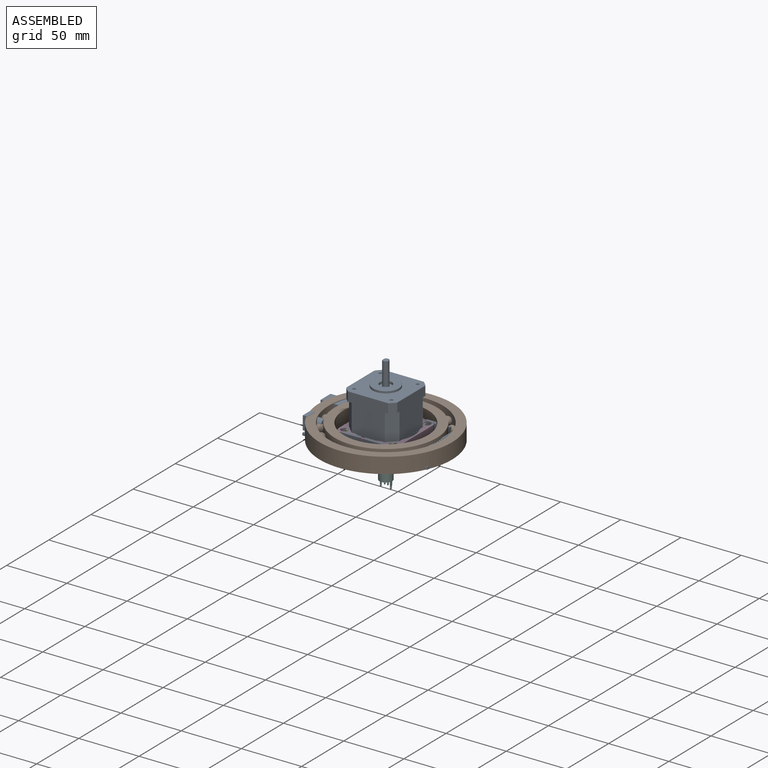
[diagram: assembled view]
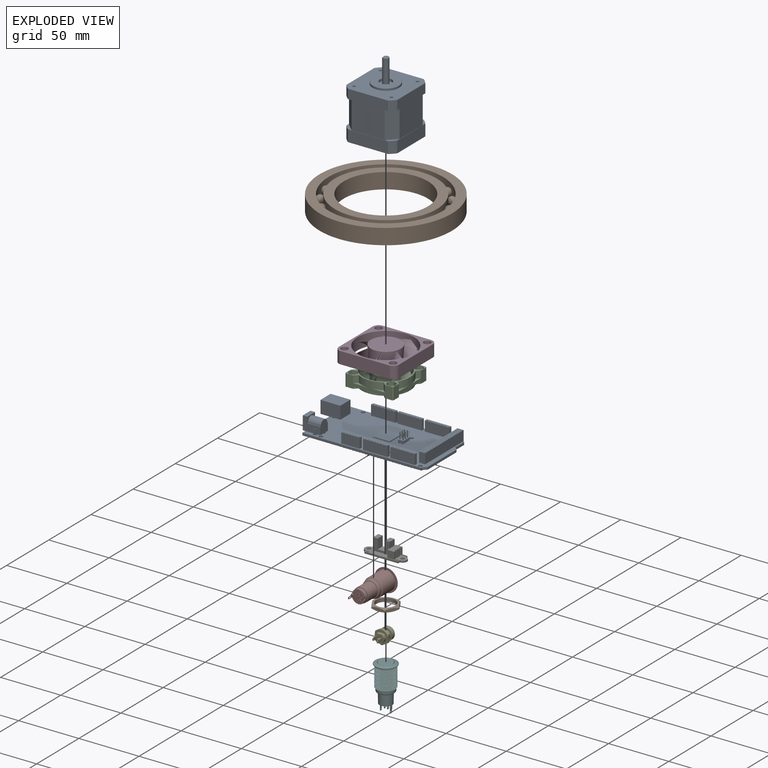
[diagram: exploded view]
GUIDED TOUR — FREECAD ASSEMBLY "AssemblyBase"

This assembly has 10 components, labeled P0..P9 below (a component is one placed body or linked part; the same part can appear more than once), held together by 0 modeled joints plus 37 derived contact edges. A joint is a constraint between two components; its type names the relative motion it leaves free:
  CONTACT — a derived adjacency edge — the two components touch in the source model (clearance under 2% of the assembly's diagonal); it is measured from the geometry, not a modeled constraint.
Axis/direction vectors are unit vectors and 'through' points are millimeter coordinates, both in the assembly's world frame.

MATES
  1. CONTACT "contact_0_1": P0 <-> P1, contact direction (0.000, 0.000, 1.000) through (43.53, 14.49, 9.83) mm (derived from contact, not a modeled constraint)
  2. CONTACT "contact_0_2": P0 <-> P2, contact direction (0.000, 0.000, 1.000) through (16.25, 9.92, 0.00) mm (derived from contact, not a modeled constraint)
  3. CONTACT "contact_0_3": P0 <-> P3, contact direction (0.000, 0.000, 1.000) through (15.52, -17.59, 0.00) mm (derived from contact, not a modeled constraint)
  4. CONTACT "contact_0_4": P0 <-> P4, contact direction (0.000, 0.000, -1.000) through (5.92, -5.20, 2.07) mm (derived from contact, not a modeled constraint)
  5. CONTACT "contact_0_5": P0 <-> P5, contact direction (0.000, 0.000, -1.000) through (6.12, -5.07, 1.58) mm (derived from contact, not a modeled constraint)
  6. CONTACT "contact_0_6": P0 <-> P6, contact direction (0.000, 0.000, -1.000) through (13.16, 3.93, 0.00) mm (derived from contact, not a modeled constraint)
  7. CONTACT "contact_0_7": P0 <-> P7, contact direction (0.000, 0.000, -1.000) through (-5.20, -25.64, 2.02) mm (derived from contact, not a modeled constraint)
  8. CONTACT "contact_0_8": P0 <-> P8, contact direction (0.000, 0.000, 1.000) through (15.49, -17.28, 0.00) mm (derived from contact, not a modeled constraint)
  9. CONTACT "contact_0_9": P0 <-> P9, contact direction (0.000, 0.000, -1.000) through (6.20, -5.19, 1.75) mm (derived from contact, not a modeled constraint)
  10. CONTACT "contact_1_3": P1 <-> P3, contact direction (0.000, 0.000, -1.000) through (22.76, 25.33, 0.00) mm (derived from contact, not a modeled constraint)
  11. CONTACT "contact_2_3": P2 <-> P3, contact direction (0.000, 0.000, 1.000) through (-15.50, 18.06, 6.72) mm (derived from contact, not a modeled constraint)
  12. CONTACT "contact_2_4": P2 <-> P4, contact direction (0.000, 0.000, -1.000) through (-2.63, -10.71, 0.04) mm (derived from contact, not a modeled constraint)
  13. CONTACT "contact_2_5": P2 <-> P5, contact direction (0.000, 0.000, -1.000) through (-4.98, 8.62, 0.07) mm (derived from contact, not a modeled constraint)
  14. CONTACT "contact_2_6": P2 <-> P6, contact direction (0.000, 0.000, -1.000) through (10.36, 3.64, 1.65) mm (derived from contact, not a modeled constraint)
  15. CONTACT "contact_2_7": P2 <-> P7, contact direction (0.000, -1.000, 0.000) through (0.30, -18.35, 6.02) mm (derived from contact, not a modeled constraint)
  16. CONTACT "contact_2_8": P2 <-> P8, contact direction (0.000, 0.000, 1.000) through (-18.79, -19.74, 0.00) mm (derived from contact, not a modeled constraint)
  17. CONTACT "contact_2_9": P2 <-> P9, contact direction (0.000, 0.000, -1.000) through (-5.49, -9.51, -0.25) mm (derived from contact, not a modeled constraint)
  18. CONTACT "contact_3_4": P3 <-> P4, contact direction (0.000, 0.000, -1.000) through (-2.77, -12.19, 0.00) mm (derived from contact, not a modeled constraint)
  19. CONTACT "contact_3_5": P3 <-> P5, contact direction (0.000, 0.000, -1.000) through (-2.90, 10.30, 0.07) mm (derived from contact, not a modeled constraint)
  20. CONTACT "contact_3_6": P3 <-> P6, contact direction (0.000, 0.000, -1.000) through (12.52, -0.35, 0.00) mm (derived from contact, not a modeled constraint)
  21. CONTACT "contact_3_7": P3 <-> P7, contact direction (0.000, -1.000, 0.000) through (2.68, -17.93, 6.19) mm (derived from contact, not a modeled constraint)
  22. CONTACT "contact_3_8": P3 <-> P8, contact direction (0.000, 0.000, 1.000) through (-19.47, -18.57, 0.00) mm (derived from contact, not a modeled constraint)
  23. CONTACT "contact_3_9": P3 <-> P9, contact direction (0.000, 0.000, -1.000) through (-5.87, -10.16, -0.25) mm (derived from contact, not a modeled constraint)
  24. CONTACT "contact_4_5": P4 <-> P5, contact direction (0.000, 0.000, -1.000) through (-5.29, -5.05, -2.71) mm (derived from contact, not a modeled constraint)
  25. CONTACT "contact_4_6": P4 <-> P6, contact direction (0.000, 0.000, 1.000) through (4.99, -5.22, 1.69) mm (derived from contact, not a modeled constraint)
  26. CONTACT "contact_4_7": P4 <-> P7, contact direction (0.000, -1.000, 0.000) through (4.61, 0.35, -2.36) mm (derived from contact, not a modeled constraint)
  27. CONTACT "contact_4_8": P4 <-> P8, contact direction (0.000, 0.000, 1.000) through (-1.66, 4.19, 3.04) mm (derived from contact, not a modeled constraint)
  28. CONTACT "contact_4_9": P4 <-> P9, contact direction (0.000, 1.000, 0.000) through (-0.17, -7.95, -1.40) mm (derived from contact, not a modeled constraint)
  29. CONTACT "contact_5_6": P5 <-> P6, contact direction (0.000, 0.000, 1.000) through (4.84, -5.01, 1.50) mm (derived from contact, not a modeled constraint)
  30. CONTACT "contact_5_7": P5 <-> P7, contact direction (0.000, -1.000, 0.000) through (-7.19, 1.32, -2.45) mm (derived from contact, not a modeled constraint)
  31. CONTACT "contact_5_8": P5 <-> P8, contact direction (0.000, 0.000, 1.000) through (3.58, -3.67, 0.00) mm (derived from contact, not a modeled constraint)
  32. CONTACT "contact_5_9": P5 <-> P9, contact direction (0.000, 0.000, 1.000) through (7.42, 2.71, -1.50) mm (derived from contact, not a modeled constraint)
  33. CONTACT "contact_6_7": P6 <-> P7, contact direction (0.000, -1.000, 0.000) through (9.52, 0.73, 1.57) mm (derived from contact, not a modeled constraint)
  34. CONTACT "contact_6_8": P6 <-> P8, contact direction (0.000, 0.000, 1.000) through (-0.16, 4.85, 3.17) mm (derived from contact, not a modeled constraint)
  35. CONTACT "contact_6_9": P6 <-> P9, contact direction (0.000, 0.000, -1.000) through (9.47, 0.89, 1.50) mm (derived from contact, not a modeled constraint)
  36. CONTACT "contact_7_8": P7 <-> P8, contact direction (0.000, 0.000, 1.000) through (4.47, 0.64, 2.95) mm (derived from contact, not a modeled constraint)
  37. CONTACT "contact_7_9": P7 <-> P9, contact direction (0.000, 1.000, 0.000) through (7.84, 0.00, 1.44) mm (derived from contact, not a modeled constraint)

ASSEMBLY ORDER
  1. P0 — the base component [order heuristic]
  2. P1 [order heuristic]
  3. P2 [order heuristic]
  4. P3 [order heuristic]
  5. P4 [order heuristic]
  6. P5 [order heuristic]
  7. P6 [order heuristic]
  8. P7 [order heuristic]
  9. P8 [order heuristic]
  10. P9 [order heuristic]
Order-tag legend:
  [order heuristic] — this assembly is geometrically interlocked (no collision-free removal order exists), so components are listed in mate-graph order; insertion feasibility is not verified.

Of the 10 components, 0 carry a construction recipe — the FreeCAD feature program (sketches with constraints, then the solid features that consume them) that regenerates the part from scratch, quoted from this document or from the linked companion document it references; the rest are supplied as boundary geometry only. The tour below walks the components in assembly order: each is shown spotlighted twice — in the assembled view, then in the exploded view, where a leader line traces a displaced component back to its assembled socket (components that stay in place when exploded have no leader line; saturated green if recipe-attached, orange if geometry-only; every other component desaturated gray) — followed by its recipe or geometry summary and the mates that hold it.
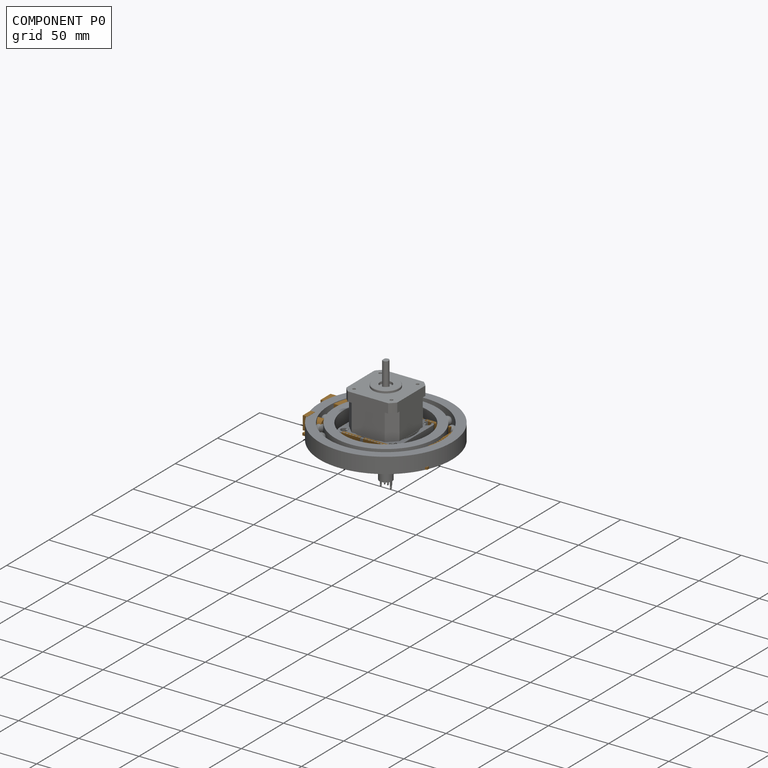
[diagram: component P0 — assembled]
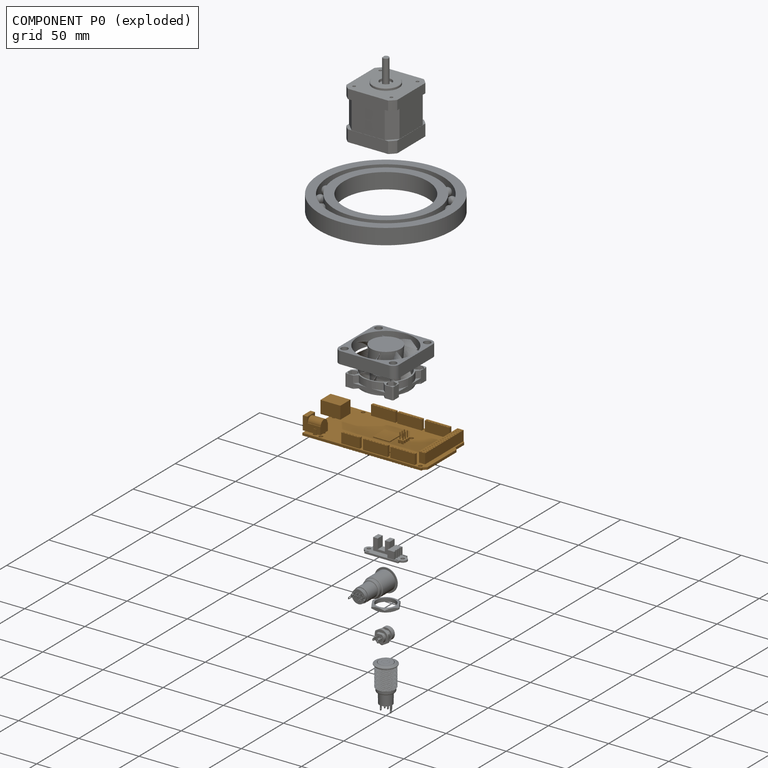
[diagram: component P0 — exploded]
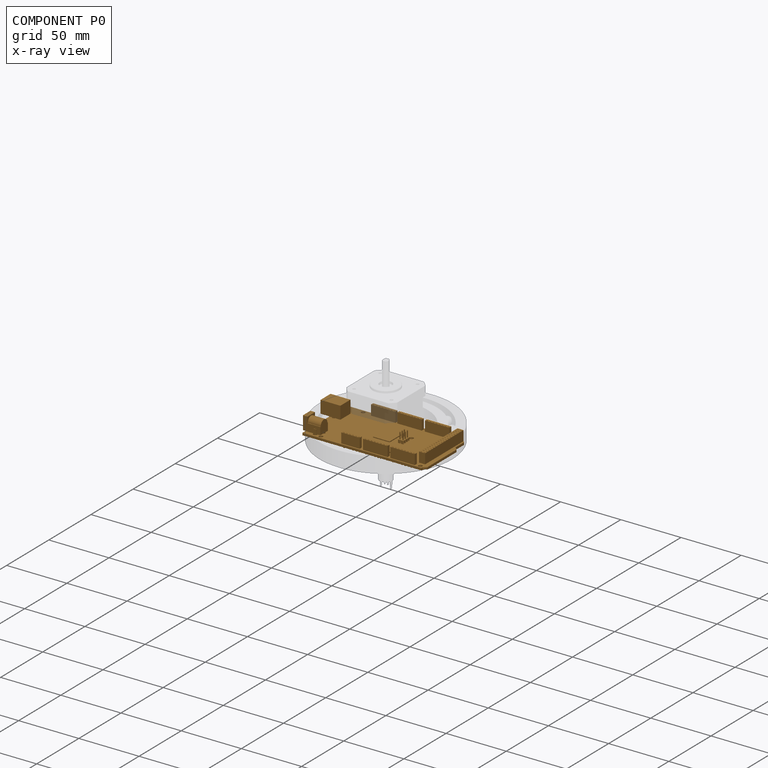
[diagram: component P0 — x-ray view]
COMPONENT P0 — geometry summary ("ArduinoMega"; no construction recipe available for this part):
  bounding box: 108.8 x 53.2 x 14.8 mm
  tessellated surface: 19,002 triangles
  volume: 17451 mm^3 (20% of its bounding box)
Held by: resting contact with P1 (derived edge); resting contact with P2 (derived edge); resting contact with P3 (derived edge); resting contact with P4 (derived edge); resting contact with P5 (derived edge); resting contact with P6 (derived edge); resting contact with P7 (derived edge); resting contact with P8 (derived edge); resting contact with P9 (derived edge).
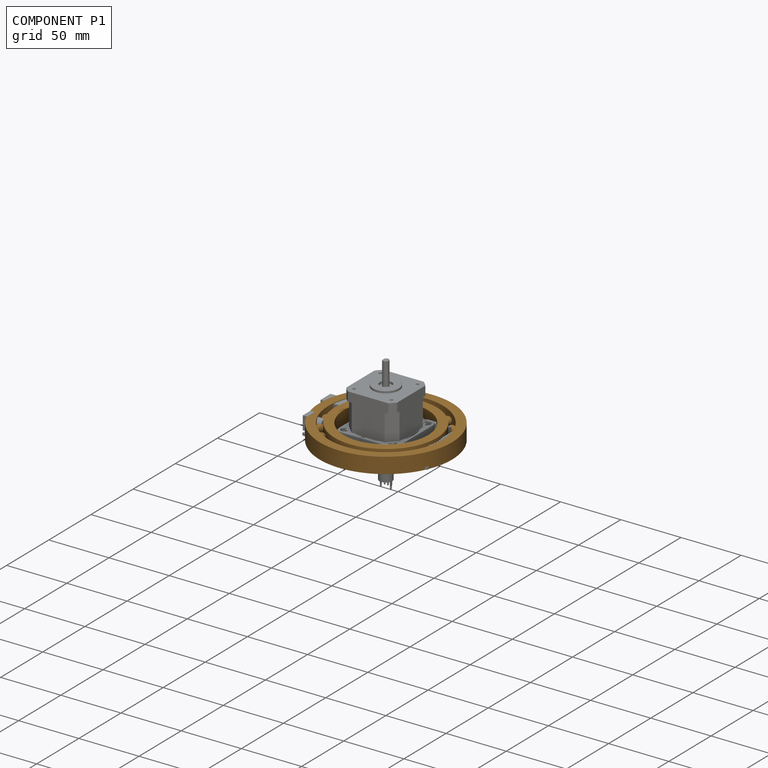
[diagram: component P1 — assembled]
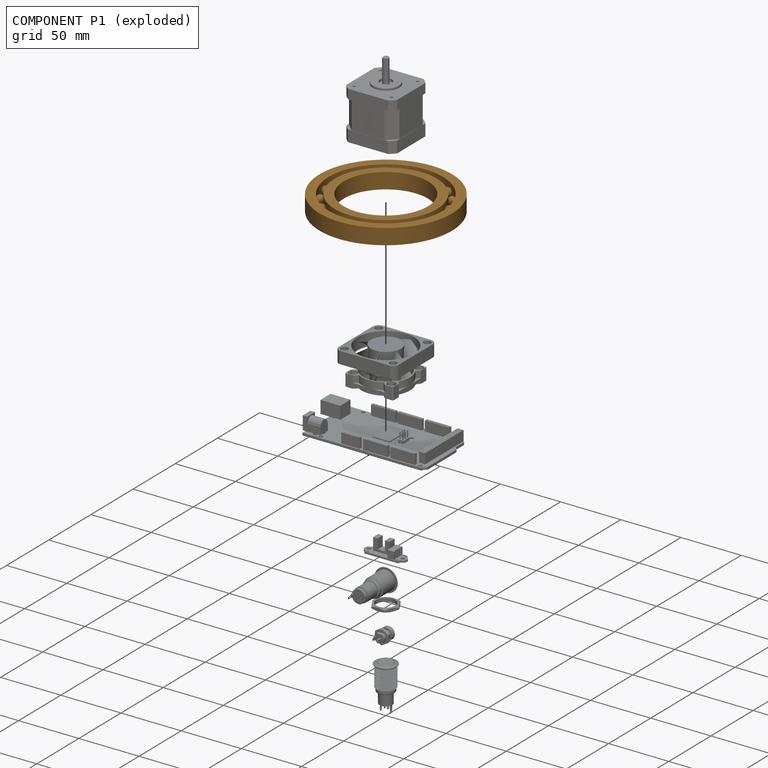
[diagram: component P1 — exploded]
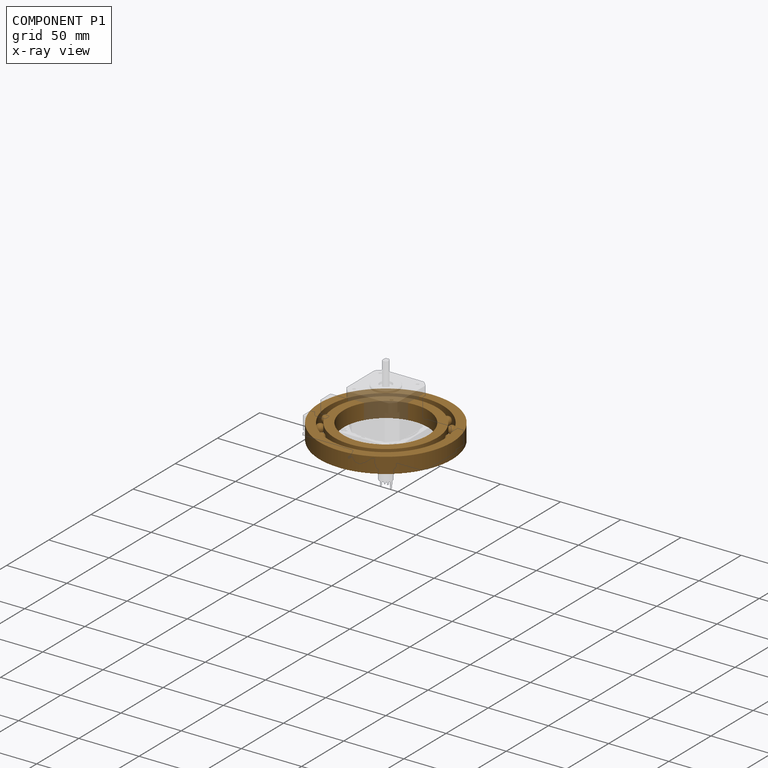
[diagram: component P1 — x-ray view]
COMPONENT P1 — geometry summary ("Bearing_16014zz"; no construction recipe available for this part):
  bounding box: 110.0 x 110.0 x 13.0 mm
  tessellated surface: 154,016 triangles
  volume: 58547 mm^3 (37% of its bounding box)
  symmetry: 2-fold rotationally symmetric about the x axis; mirror-symmetric across its y mid-plane, z mid-plane
Held by: resting contact with P0 (derived edge); resting contact with P3 (derived edge).
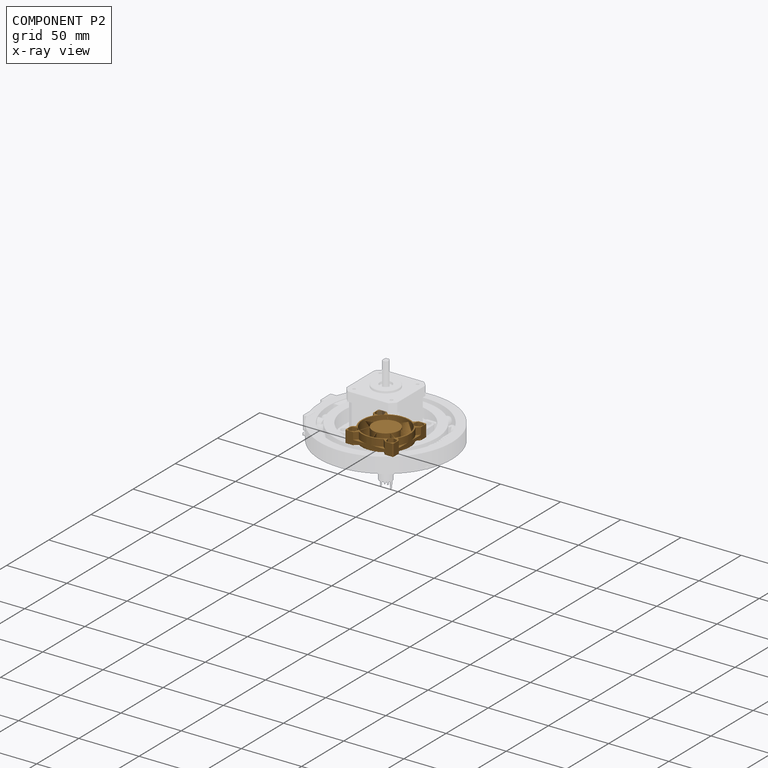
[diagram: component P2 — x-ray view]
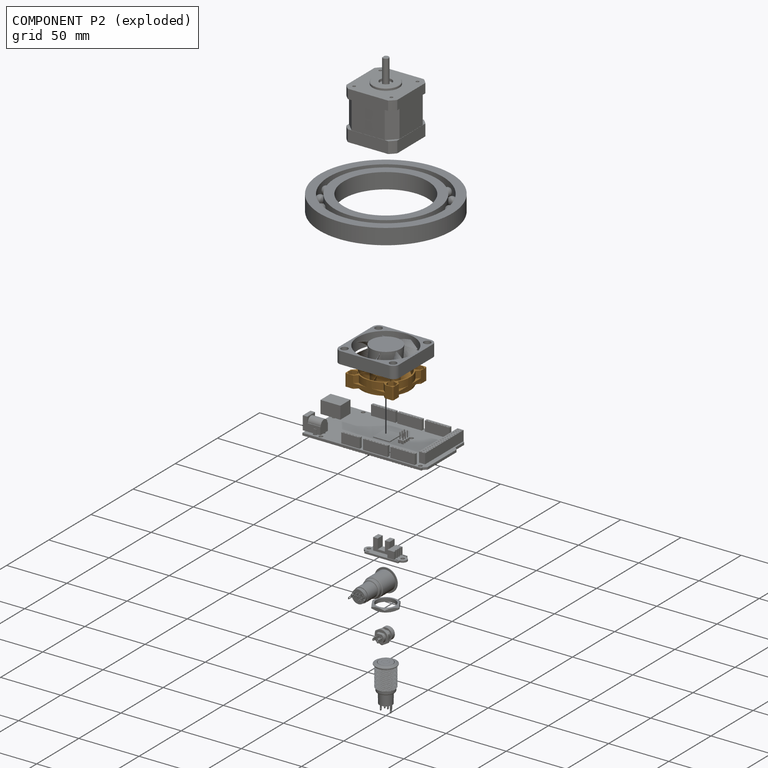
[diagram: component P2 — exploded]
COMPONENT P2 — geometry summary ("Fan_40x40"; no construction recipe available for this part):
  bounding box: 40.0 x 40.0 x 10.0 mm
  tessellated surface: 6,890 triangles
  volume: 6703 mm^3 (42% of its bounding box)
Held by: resting contact with P0 (derived edge); resting contact with P3 (derived edge); resting contact with P4 (derived edge); resting contact with P5 (derived edge); resting contact with P6 (derived edge); resting contact with P7 (derived edge); resting contact with P8 (derived edge); resting contact with P9 (derived edge).
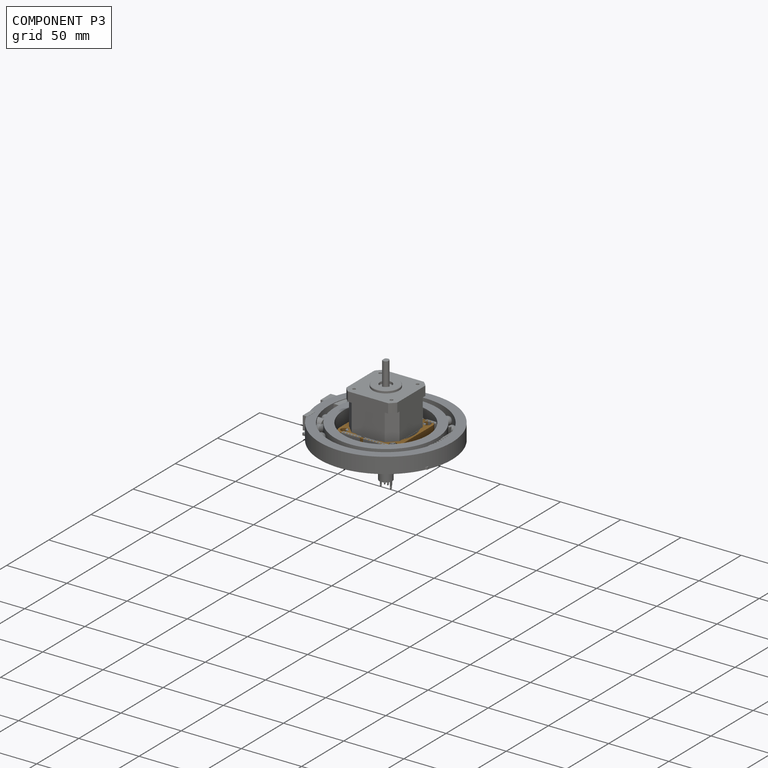
[diagram: component P3 — assembled]
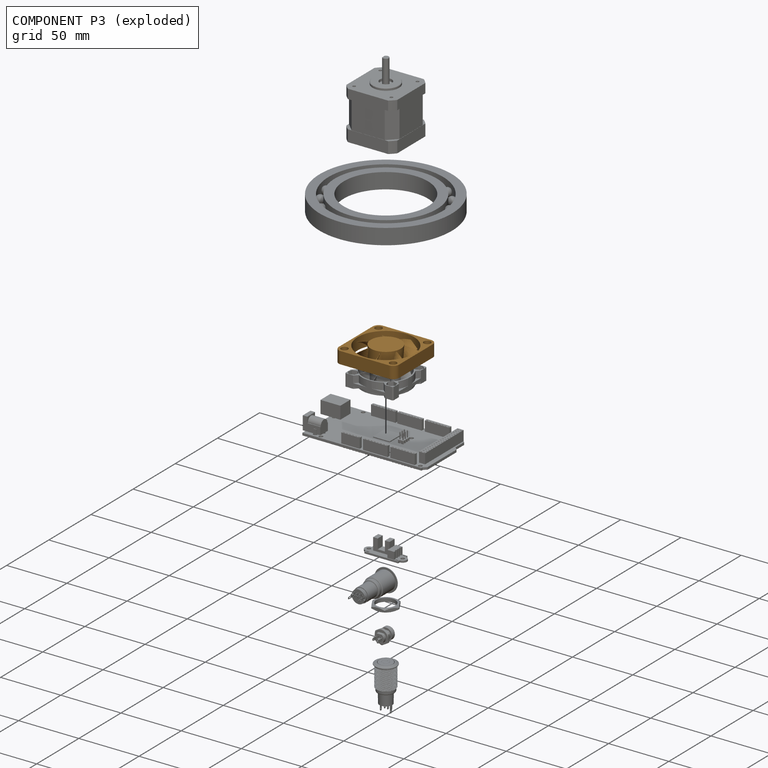
[diagram: component P3 — exploded]
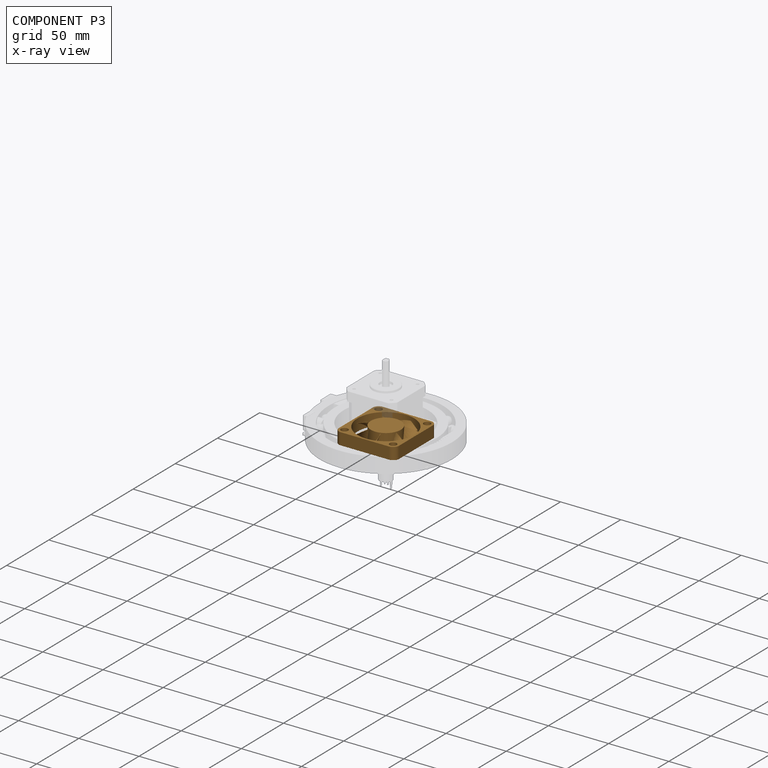
[diagram: component P3 — x-ray view]
COMPONENT P3 — geometry summary ("Fan_50x50"; no construction recipe available for this part):
  bounding box: 50.0 x 50.0 x 11.0 mm
  tessellated surface: 9,626 triangles
  volume: 12995 mm^3 (47% of its bounding box)
Held by: resting contact with P0 (derived edge); resting contact with P1 (derived edge); resting contact with P2 (derived edge); resting contact with P4 (derived edge); resting contact with P5 (derived edge); resting contact with P6 (derived edge); resting contact with P7 (derived edge); resting contact with P8 (derived edge); resting contact with P9 (derived edge).
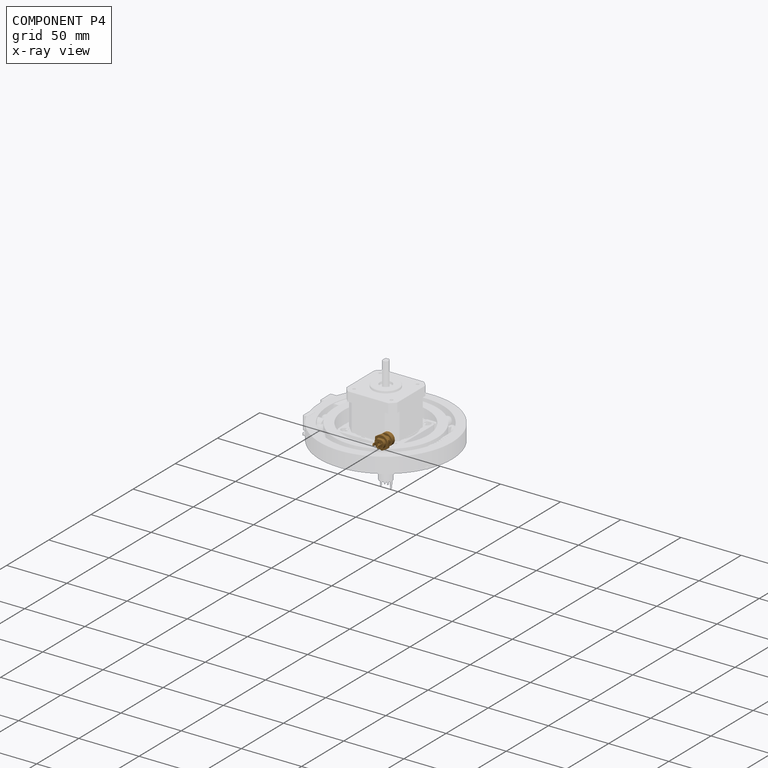
[diagram: component P4 — x-ray view]
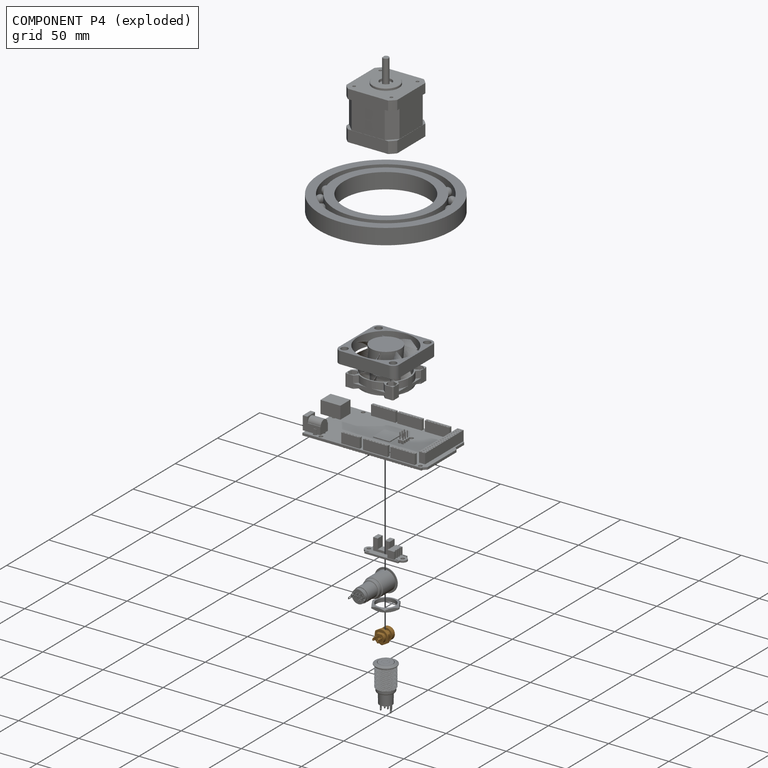
[diagram: component P4 — exploded]
COMPONENT P4 — geometry summary ("JackDC"; no construction recipe available for this part):
  bounding box: 18.2 x 12.7 x 11.0 mm
  tessellated surface: 6,260 triangles
  volume: 634 mm^3 (25% of its bounding box)
  symmetry: mirror-symmetric across its z mid-plane
Held by: resting contact with P0 (derived edge); resting contact with P2 (derived edge); resting contact with P3 (derived edge); resting contact with P5 (derived edge); resting contact with P6 (derived edge); resting contact with P7 (derived edge); resting contact with P8 (derived edge); resting contact with P9 (derived edge).
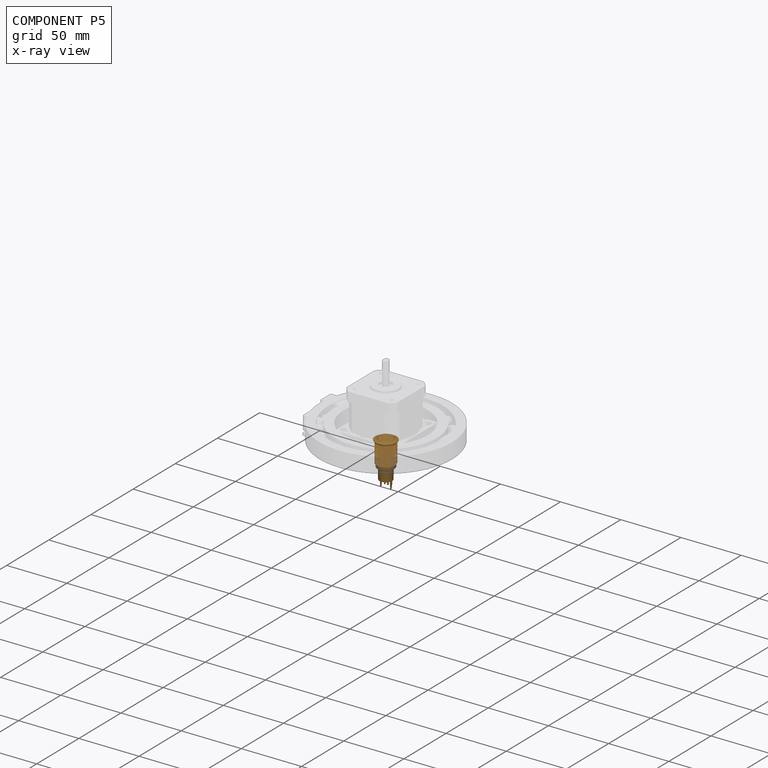
[diagram: component P5 — x-ray view]
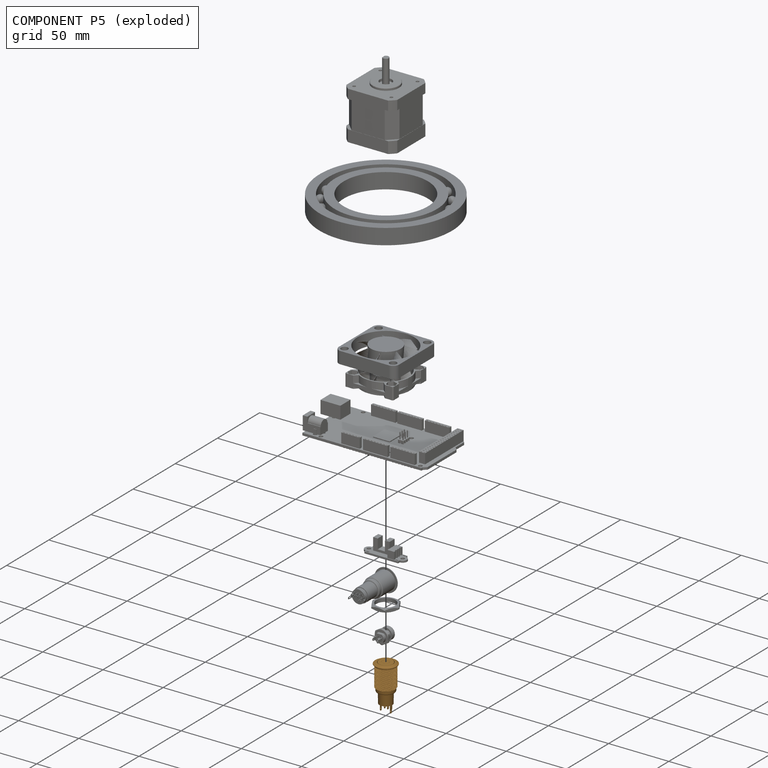
[diagram: component P5 — exploded]
COMPONENT P5 — geometry summary ("OnOffButton"; no construction recipe available for this part):
  bounding box: 37.5 x 17.8 x 17.8 mm
  tessellated surface: 54,886 triangles
  volume: 4754 mm^3 (40% of its bounding box)
  symmetry: mirror-symmetric across its x mid-plane
Held by: resting contact with P0 (derived edge); resting contact with P2 (derived edge); resting contact with P3 (derived edge); resting contact with P4 (derived edge); resting contact with P6 (derived edge); resting contact with P7 (derived edge); resting contact with P8 (derived edge); resting contact with P9 (derived edge).
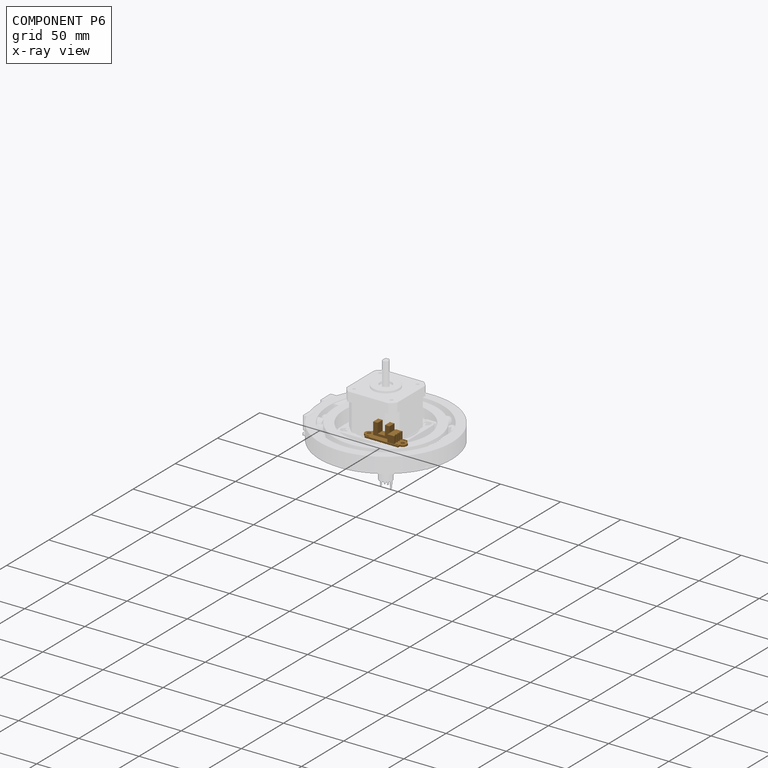
[diagram: component P6 — x-ray view]
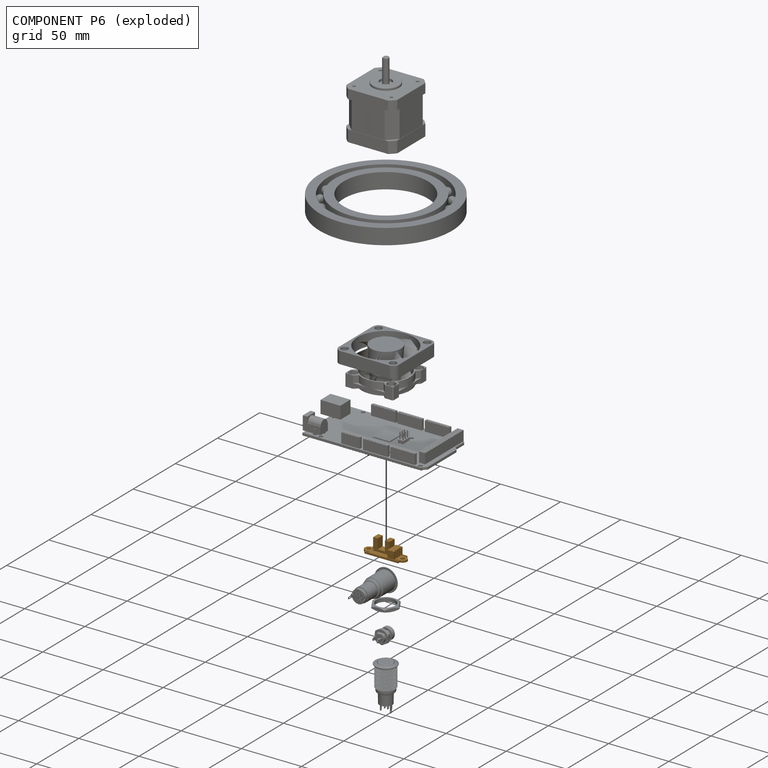
[diagram: component P6 — exploded]
COMPONENT P6 — geometry summary ("OpticSensor"; no construction recipe available for this part):
  bounding box: 35.0 x 11.5 x 11.0 mm
  tessellated surface: 1,532 triangles
  volume: 1323 mm^3 (30% of its bounding box)
Held by: resting contact with P0 (derived edge); resting contact with P2 (derived edge); resting contact with P3 (derived edge); resting contact with P4 (derived edge); resting contact with P5 (derived edge); resting contact with P7 (derived edge); resting contact with P8 (derived edge); resting contact with P9 (derived edge).
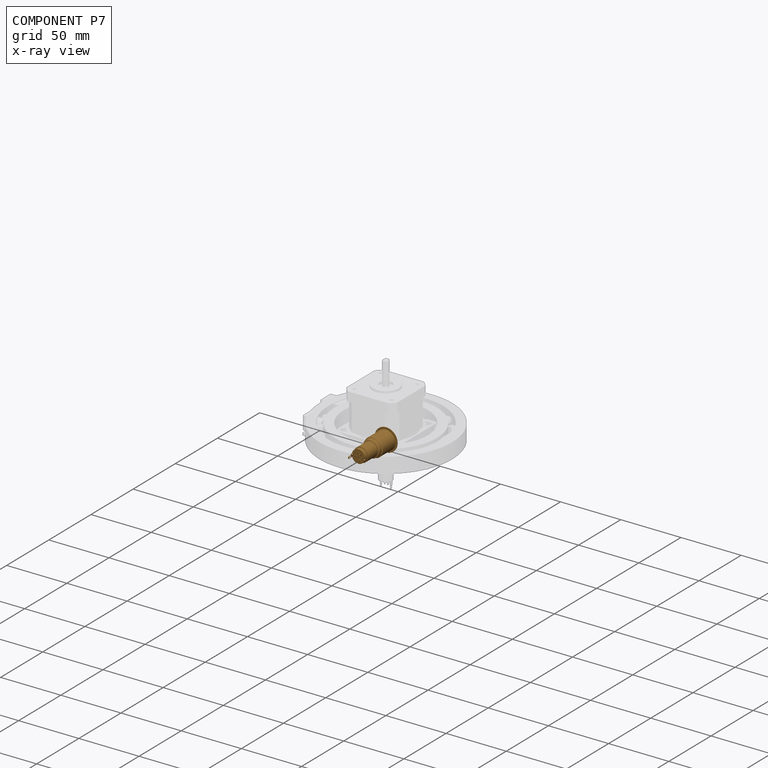
[diagram: component P7 — x-ray view]
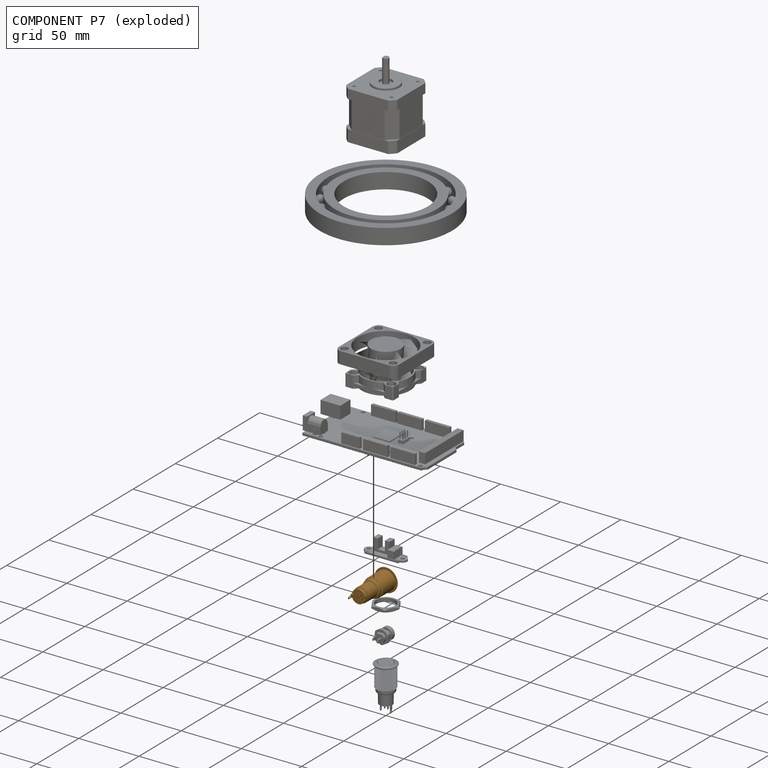
[diagram: component P7 — exploded]
COMPONENT P7 — geometry summary ("ResetButton"; no construction recipe available for this part):
  bounding box: 40.6 x 18.9 x 18.9 mm
  tessellated surface: 9,406 triangles
  volume: 5143 mm^3 (35% of its bounding box)
  symmetry: mirror-symmetric across its x mid-plane
Held by: resting contact with P0 (derived edge); resting contact with P2 (derived edge); resting contact with P3 (derived edge); resting contact with P4 (derived edge); resting contact with P5 (derived edge); resting contact with P6 (derived edge); resting contact with P8 (derived edge); resting contact with P9 (derived edge).
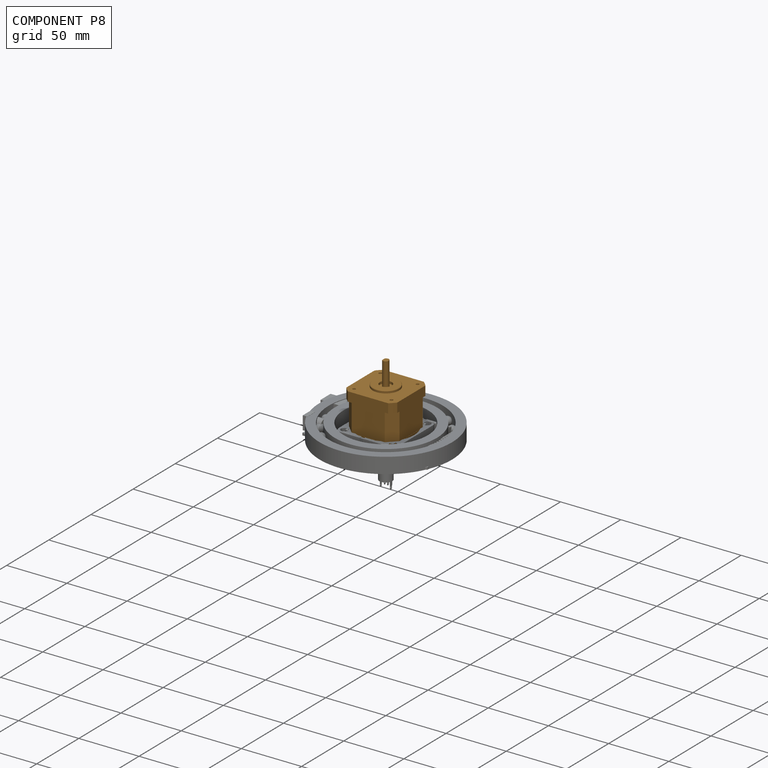
[diagram: component P8 — assembled]
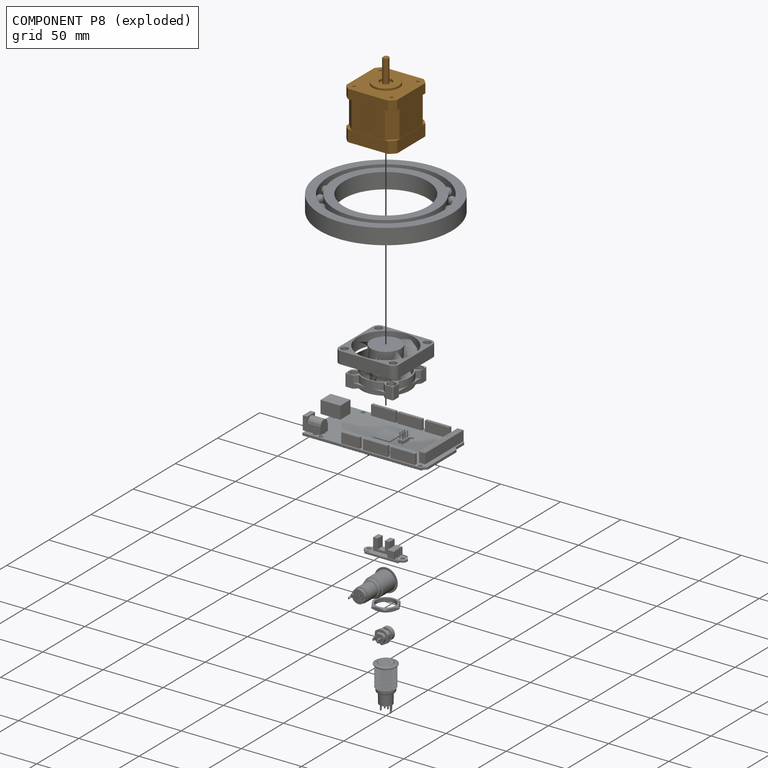
[diagram: component P8 — exploded]
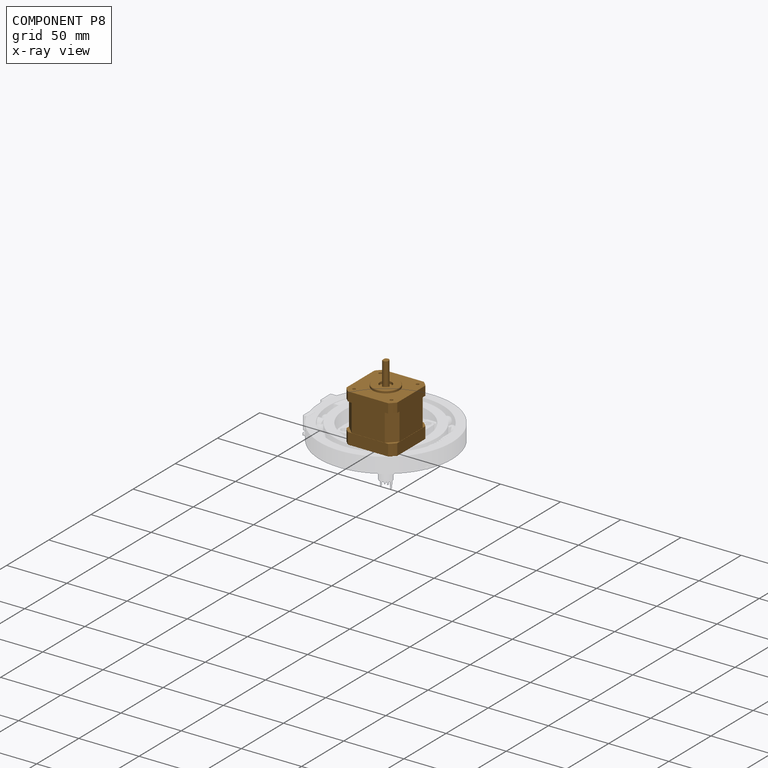
[diagram: component P8 — x-ray view]
COMPONENT P8 — geometry summary ("Stepper_Nema17x40"; no construction recipe available for this part):
  bounding box: 60.1 x 42.3 x 42.3 mm
  tessellated surface: 4,232 triangles
  volume: 68749 mm^3 (64% of its bounding box)
  symmetry: 4-fold rotationally symmetric about the z axis; mirror-symmetric across its x mid-plane, y mid-plane
Held by: resting contact with P0 (derived edge); resting contact with P2 (derived edge); resting contact with P3 (derived edge); resting contact with P4 (derived edge); resting contact with P5 (derived edge); resting contact with P6 (derived edge); resting contact with P7 (derived edge).
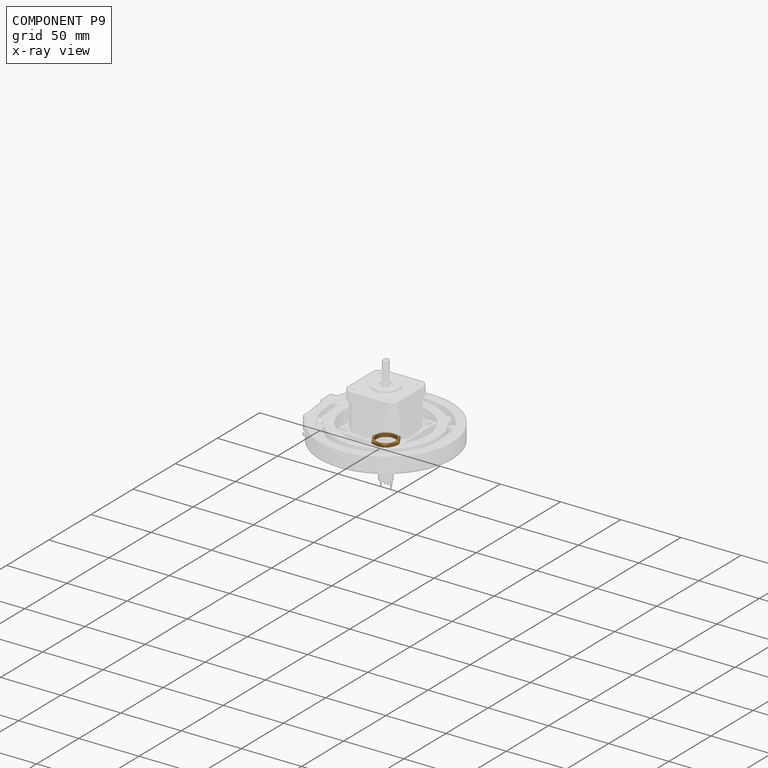
[diagram: component P9 — x-ray view]
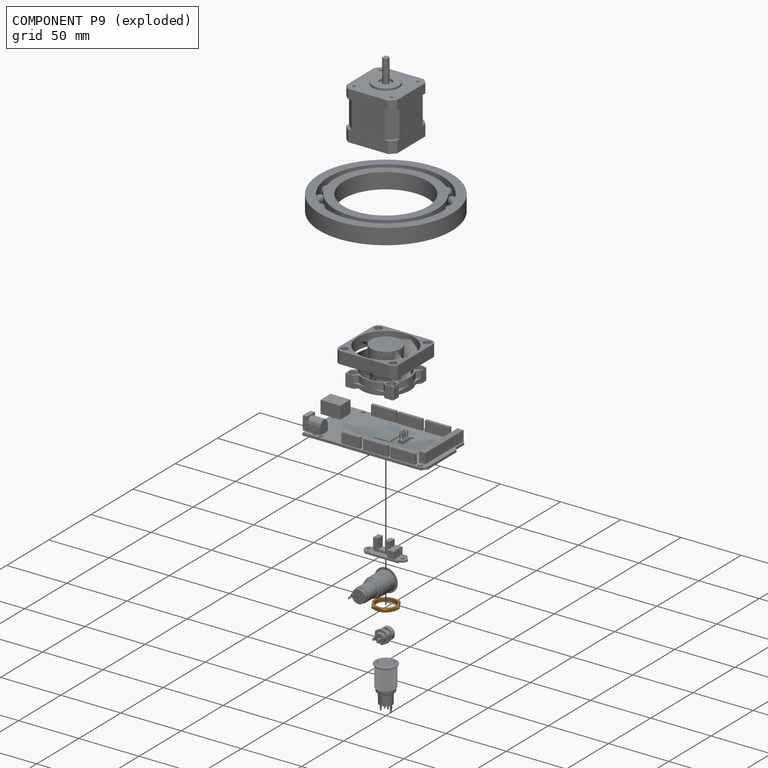
[diagram: component P9 — exploded]
COMPONENT P9 — geometry summary ("NutButton"; no construction recipe available for this part):
  bounding box: 21.9 x 19.0 x 3.0 mm
  tessellated surface: 1,424 triangles
  volume: 324 mm^3 (26% of its bounding box)
  symmetry: 2-fold rotationally symmetric about the x axis; 2-fold rotationally symmetric about the y axis; 6-fold rotationally symmetric about the z axis; mirror-symmetric across its x mid-plane, y mid-plane, z mid-plane
Held by: resting contact with P0 (derived edge); resting contact with P2 (derived edge); resting contact with P3 (derived edge); resting contact with P4 (derived edge); resting contact with P5 (derived edge); resting contact with P6 (derived edge); resting contact with P7 (derived edge).
PROVENANCE & LICENSES
Assembly and component geometry: a FreeCAD (.FCStd) document from a public repository crawl; components, placements and joints were extracted with FreeCAD and each solid tessellated.
Construction recipes: the document's own serialized feature recipes (and, for linked parts, the recipes of companion documents from the same project).
License: as declared in the source repository (recorded in the dataset sidecar).
Joints: native FreeCAD joints and A2plus constraints are mapped to standard mate types; edges marked 'derived from contact' connect touching components and are measured from the geometry, not modeled.
Verification: no construction recipes in this assembly (10 components, all geometry-only). Every component's tessellation passed the extraction mesh gates (mesh-volume checksum against the B-rep where available, bounding-box inflation <= 2%).
Renders: orthographic iso camera (az 35 / el 25); the floor grid conveys scale (grid pitch printed in each image; no ruler). In the exploded view each component is displaced by its stored offset vector: the offsets alone carry the explosion direction (mate normal/axis signs are not orientation cues and do not encode it), and separation distances are assigned per mate-chain, not proportionally to assembly-order depth.
